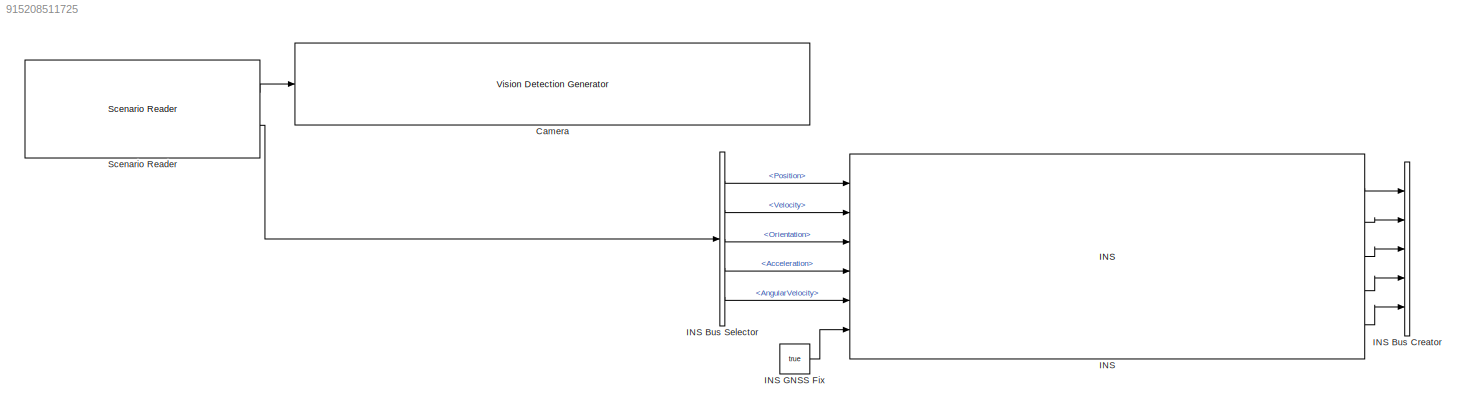
MODEL slx_915208511725
KIND model
CONFIG AbsTol = auto
CONFIG EnableMultiTasking = off
CONFIG FixedStep = auto
CONFIG MaxStep = auto
CONFIG MinStep = auto
CONFIG RelTol = 1e-3
CONFIG SampleTimeConstraint = Unconstrained
CONFIG SolverName = FixedStepDiscrete
CONFIG StartTime = 0.0
CONFIG StopTime = 10.0
WORKSPACE source: mxarray member
WORKSPACE firstWarning = 1
WORKSPACE originalScenarioChecksum = '294315CD307D76F20155BD64B5C15E8C'
BLOCK [Reference] Camera  REF=drivingscenarioandsensors/Vision Detection Generator
  Ports = [1, 1]
  SourceBlock = drivingscenarioandsensors/Vision Detection Generator
  SourceProductBaseCode = DR
  SourceType = visionDetectionGenerator
BLOCK [Reference] INS  REF=sensorinslib/INS
  Ports = [6, 5]
  SourceBlock = sensorinslib/INS
  SourceProductBaseCode = TF,DR,NV,UV
  SourceType = fusion.internal.simulink.insSensor
BLOCK [BusCreator] INS Bus Creator
  InheritFromInputs = on
  Inputs = 5
  Ports = [5, 1]
BLOCK [BusSelector] INS Bus Selector
  OutputSignals = Position,Velocity,Orientation,Acceleration,AngularVelocity
  Ports = [1, 5]
BLOCK [Constant] INS GNSS Fix
  Value = true
BLOCK [Reference] Scenario Reader  REF=drivingscenarioandsensors/Scenario Reader
  Ports = [0, 2]
  SourceBlock = drivingscenarioandsensors/Scenario Reader
  SourceProductBaseCode = DR
  SourceType = driving.scenario.internal.ScenarioReader
LINE INS Bus Selector:1 -> INS:1
LINE INS Bus Selector:2 -> INS:2
LINE INS Bus Selector:3 -> INS:3
LINE INS Bus Selector:4 -> INS:4
LINE INS Bus Selector:5 -> INS:5
LINE INS GNSS Fix:1 -> INS:6
LINE INS:1 -> INS Bus Creator:1
LINE INS:2 -> INS Bus Creator:2
LINE INS:3 -> INS Bus Creator:3
LINE INS:4 -> INS Bus Creator:4
LINE INS:5 -> INS Bus Creator:5
LINE Scenario Reader:1 -> Camera:1
LINE Scenario Reader:2 -> INS Bus Selector:1
